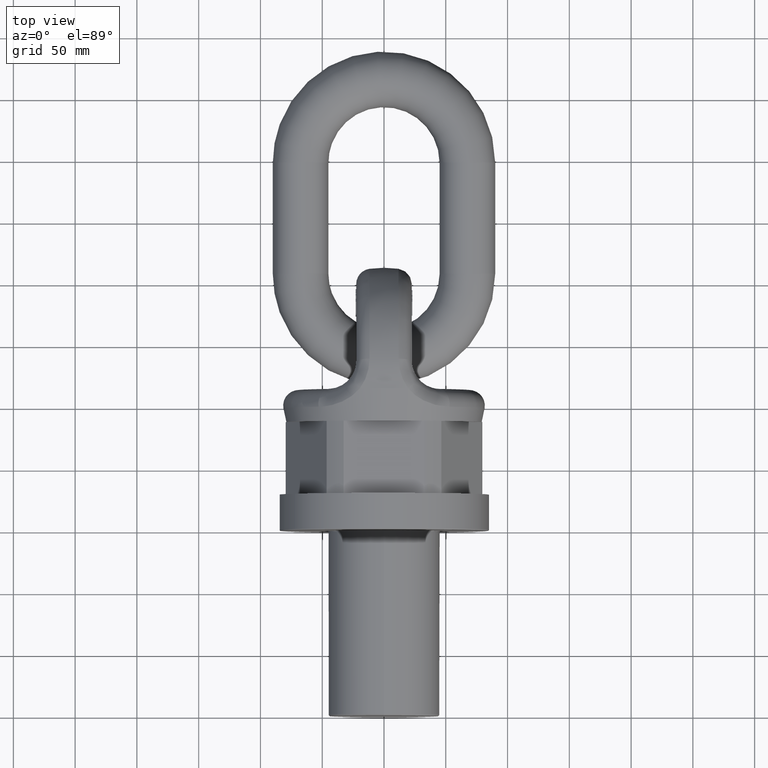
[diagram: clean part render]
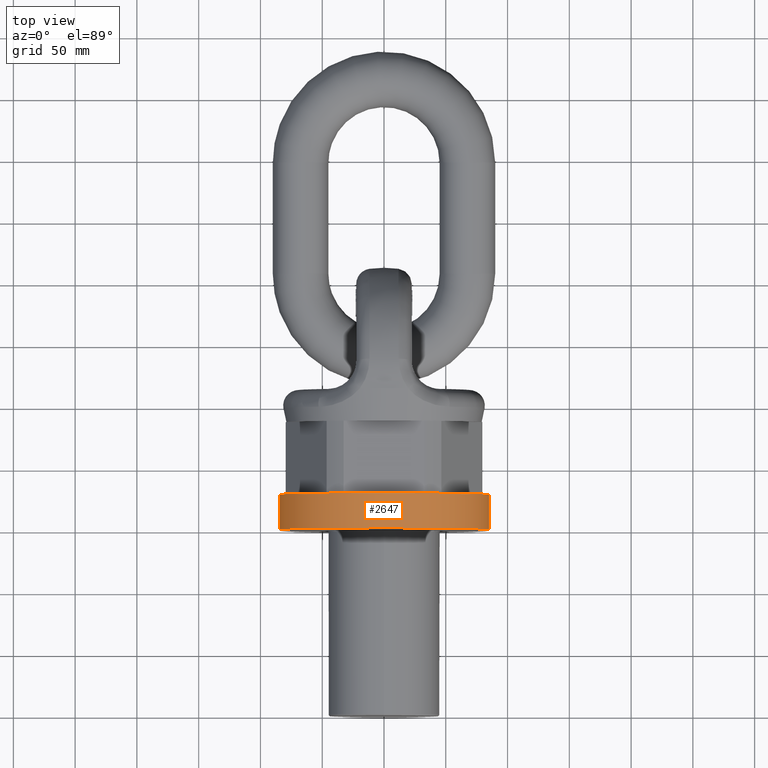
[diagram: same view with one face highlighted and labeled with its STEP entity id]
A machine part, top view. The second image highlights one B-rep face of the part: STEP entity #2647.
In plain terms, the highlighted cylindrical surface (bore or boss wall) has radius 85 mm, axis along (0, -1, 0).
Its self-contained STEP definition (entity closure, byte-faithful):
#2020=CYLINDRICAL_SURFACE('',#5616,85.);
#2647=ADVANCED_FACE('',(#2997,#2998),#2020,.T.);
#2997=FACE_BOUND('',#3069,.T.);
#2998=FACE_BOUND('',#3070,.T.);
#3069=EDGE_LOOP('',(#3366));
#3070=EDGE_LOOP('',(#3367));
#3366=ORIENTED_EDGE('',*,*,#4956,.T.);
#3367=ORIENTED_EDGE('',*,*,#4943,.T.);
#4545=VERTEX_POINT('',#6576);
#4558=VERTEX_POINT('',#6603);
#4943=EDGE_CURVE('',#4545,#4545,#5539,.T.);
#4956=EDGE_CURVE('',#4558,#4558,#5546,.T.);
#5539=CIRCLE('',#5607,85.);
#5546=CIRCLE('',#5615,85.);
#5607=AXIS2_PLACEMENT_3D('',#6575,#5817,#5818);
#5615=AXIS2_PLACEMENT_3D('',#6602,#5839,#5840);
#5616=AXIS2_PLACEMENT_3D('',#6604,#5841,#5842);
#5817=DIRECTION('',(5.39262084851817E-17,-1.,0.));
#5818=DIRECTION('',(1.,4.08170229641602E-17,0.));
#5839=DIRECTION('',(-5.39262084851817E-17,1.,0.));
#5840=DIRECTION('',(1.,5.35723426404602E-17,0.));
#5841=DIRECTION('',(5.39262084851817E-17,-1.,0.));
#5842=DIRECTION('',(1.,4.08170229641602E-17,0.));
#6575=CARTESIAN_POINT('',(-1.58183544889866E-15,29.3333333333333,0.));
#6576=CARTESIAN_POINT('',(85.,29.3333333333333,0.));
#6602=CARTESIAN_POINT('',(-5.39262084851815E-17,0.999999999999997,0.));
#6603=CARTESIAN_POINT('',(85.,1.,0.));
#6604=CARTESIAN_POINT('',(-1.58183544889866E-15,29.3333333333333,0.));